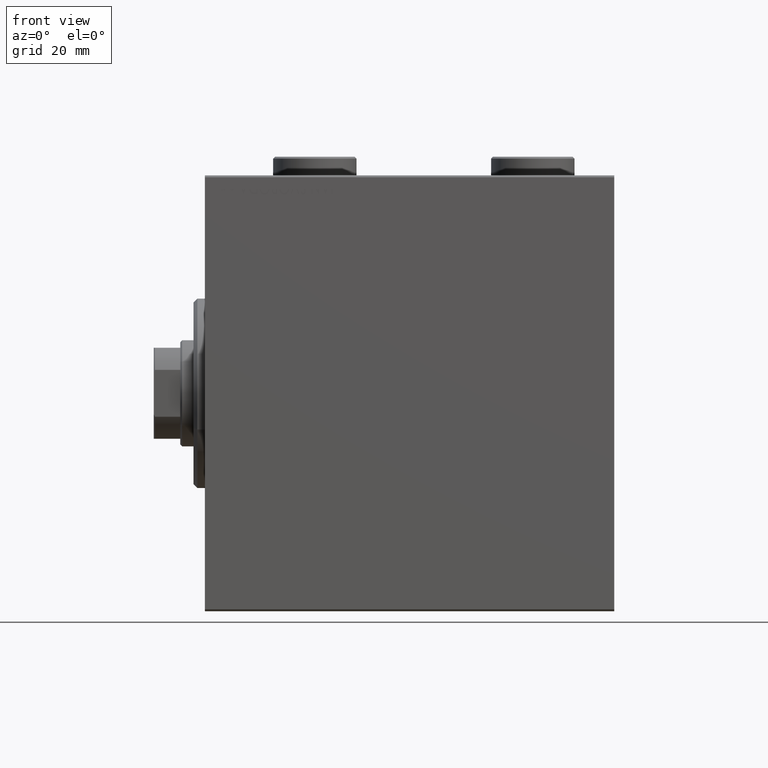
[diagram: clean part render]
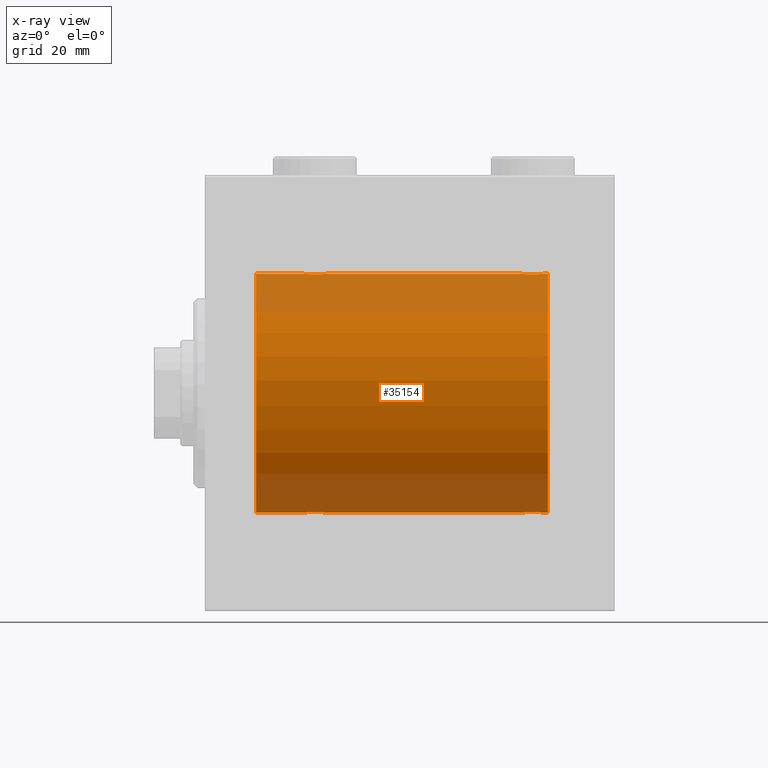
[diagram: x-ray — body ghosted, one internal face saturated and labeled with its STEP entity id]
A machine part, front view, then the same camera in x-ray: the body is ghosted and one INTERNAL B-rep face — a face not visible from any outside direction — is saturated and labeled: STEP entity #35154.
In plain terms, the highlighted cylindrical surface (partial cylindrical patch) has radius 31.5 mm, axis along (-1, -0, -0).
Its self-contained STEP definition (entity closure, byte-faithful):
#488 = CARTESIAN_POINT ( 'NONE',  ( 26.00000000000000355, -0.3965830985361813443, -31.50000000000000711 ) ) ;
#941 = AXIS2_PLACEMENT_3D ( 'NONE', #15139, #35778, #4399 ) ;
#1130 = EDGE_CURVE ( 'NONE', #20079, #31421, #42364, .T. ) ;
#1170 = CYLINDRICAL_SURFACE ( 'NONE', #941, 31.50000000000000000 ) ;
#1185 = CARTESIAN_POINT ( 'NONE',  ( 83.80285761163298730, -1.328004386210315024, 31.47251238182141719 ) ) ;
#1847 = CARTESIAN_POINT ( 'NONE',  ( 29.39114547339941552, -2.980809450819701834, 31.35867074198615967 ) ) ;
#1863 = CARTESIAN_POINT ( 'NONE',  ( 85.17134585312489037, -2.696917666262924840, -31.38442820068731365 ) ) ;
#2325 = CARTESIAN_POINT ( 'NONE',  ( 89.34660463742501690, -0.9669616078781998469, -31.48567319468627446 ) ) ;
#2420 = CARTESIAN_POINT ( 'NONE',  ( 28.03484270189360217, -2.847307171789034808, -31.37114183851420179 ) ) ;
#2535 = CARTESIAN_POINT ( 'NONE',  ( 27.01539640075335669, -2.258226318633785201, 31.41925597582825702 ) ) ;
#2552 = CARTESIAN_POINT ( 'NONE',  ( 83.80470357640989221, -1.331741824817675113, -31.47235367475394341 ) ) ;
#2558 = CARTESIAN_POINT ( 'NONE',  ( 90.50000000000000000, 3.857637417314162689E-15, -31.50000000000000000 ) ) ;
#2566 = LINE ( 'NONE', #27535, #6495 ) ;
#2648 = CARTESIAN_POINT ( 'NONE',  ( 27.17295774629732819, -2.387531469909775605, -31.40957782495775419 ) ) ;
#2724 = DIRECTION ( 'NONE',  ( 0.000000000000000000, 0.000000000000000000, 1.000000000000000000 ) ) ;
#2977 = CARTESIAN_POINT ( 'NONE',  ( 32.00000000000000000, -3.906065418435112189E-16, 31.50000000000000000 ) ) ;
#3077 = LINE ( 'NONE', #6512, #22370 ) ;
#3710 = ORIENTED_EDGE ( 'NONE', *, *, #10427, .T. ) ;
#4178 = CARTESIAN_POINT ( 'NONE',  ( 88.75824501903265684, -1.984587626072075617, 31.43772577203671759 ) ) ;
#4329 = DIRECTION ( 'NONE',  ( -1.000000000000000000, -0.000000000000000000, -0.000000000000000000 ) ) ;
#4399 = DIRECTION ( 'NONE',  ( 0.000000000000000000, 0.000000000000000000, 1.000000000000000000 ) ) ;
#4506 = ORIENTED_EDGE ( 'NONE', *, *, #41700, .F. ) ;
#4850 = CARTESIAN_POINT ( 'NONE',  ( 87.82865414687509542, -2.696917666262913738, 31.38442820068732075 ) ) ;
#5073 = CARTESIAN_POINT ( 'NONE',  ( 89.10192140439151842, -1.506272792558327245, 31.46439306106695710 ) ) ;
#5312 = CARTESIAN_POINT ( 'NONE',  ( 86.10885452660059514, -2.980809450819716933, -31.35867074198615967 ) ) ;
#5537 = CARTESIAN_POINT ( 'NONE',  ( 83.57979337049955859, -0.7905881588836273233, -31.49214662150069088 ) ) ;
#5768 = CARTESIAN_POINT ( 'NONE',  ( 89.48101509391514696, -0.3904857149112013204, -31.49817436802766224 ) ) ;
#5865 = CARTESIAN_POINT ( 'NONE',  ( 30.33239958099164824, -2.695056442718529954, -31.38458855656185875 ) ) ;
#6007 = LINE ( 'NONE', #2558, #31145 ) ;
#6048 = EDGE_CURVE ( 'NONE', #23041, #16712, #41604, .T. ) ;
#6313 = CARTESIAN_POINT ( 'NONE',  ( 26.61753127733371116, -1.833765390051047106, -31.44700610425690002 ) ) ;
#6495 = VECTOR ( 'NONE', #16538, 1000.000000000000000 ) ;
#6512 = CARTESIAN_POINT ( 'NONE',  ( 90.50000000000000000, 0.000000000000000000, 31.50000000000000000 ) ) ;
#6570 = CARTESIAN_POINT ( 'NONE',  ( 13.49999999999999822, 0.000000000000000000, 31.50000000000000000 ) ) ;
#6710 = CIRCLE ( 'NONE', #8875, 31.50000000000000000 ) ;
#6860 = EDGE_LOOP ( 'NONE', ( #18983, #23553, #39821, #38417, #15290, #30472, #3710, #16254, #13138, #22982, #17869, #4506 ) ) ;
#7127 = VERTEX_POINT ( 'NONE', #6570 ) ;
#7381 = CARTESIAN_POINT ( 'NONE',  ( 32.00000000000001421, -0.1958045626907418957, -31.50000000000000711 ) ) ;
#7587 = LINE ( 'NONE', #21570, #27246 ) ;
#7843 = CARTESIAN_POINT ( 'NONE',  ( 83.59580549261943361, -0.7775502215293907948, 31.49099686045558855 ) ) ;
#8112 = CARTESIAN_POINT ( 'NONE',  ( 90.50000000000000000, 0.000000000000000000, 31.50000000000000000 ) ) ;
#8172 = CIRCLE ( 'NONE', #39628, 31.50000000000000000 ) ;
#8492 = CARTESIAN_POINT ( 'NONE',  ( 27.66760041900836953, -2.695056442718533507, 31.38458855656185875 ) ) ;
#8875 = AXIS2_PLACEMENT_3D ( 'NONE', #30918, #44896, #2724 ) ;
#8964 = CARTESIAN_POINT ( 'NONE',  ( 87.83239958099163402, -2.695056442718546830, -31.38458855656186230 ) ) ;
#9747 = CARTESIAN_POINT ( 'NONE',  ( 31.60417781274729165, -1.502389880412996259, -31.46458023642406587 ) ) ;
#10316 = CARTESIAN_POINT ( 'NONE',  ( 83.49999999999998579, -1.354660151018645615E-14, -31.50000000000000000 ) ) ;
#10427 = EDGE_CURVE ( 'NONE', #33763, #7127, #6710, .T. ) ;
#10703 = B_SPLINE_CURVE_WITH_KNOTS ( 'NONE', 3,
 ( #24553, #7381, #23726, #16861, #23255, #33580, #9747, #20087, #30609, #13411, #42203, #28000, #5865, #19852, #16161, #10799, #44128, #33809, #34037, #20307, #2420, #44353, #23500, #2648, #44582, #13187, #6313, #34262, #36220, #22258, #488, #25465 ),
 .UNSPECIFIED., .F., .F.,
 ( 4, 2, 2, 2, 2, 2, 2, 2, 2, 2, 2, 2, 2, 2, 2, 4 ),
 ( 0.009384682587134662163, 0.009971088165454068328, 0.01055749374377347449, 0.01114389932209288066, 0.01173030490041228682, 0.01231671047873168605, 0.01290311605705108527, 0.01348952163537048277, 0.01407592721368988199, 0.01466233279200928122, 0.01524873837032868044, 0.01583514394864807967, 0.01642154952696747716, 0.01700795510528687812, 0.01759436068360627908, 0.01876717184024507407 ),
 .UNSPECIFIED. ) ;
#10799 = CARTESIAN_POINT ( 'NONE',  ( 29.39534111000094541, -2.980257240990050960, -31.35872356503797320 ) ) ;
#11058 = CARTESIAN_POINT ( 'NONE',  ( 87.27469094434374597, -2.904836261170115730, 31.36579955910872997 ) ) ;
#11284 = CARTESIAN_POINT ( 'NONE',  ( 83.65339536257499731, -0.9669616078782070634, 31.48567319468626735 ) ) ;
#11287 = DIRECTION ( 'NONE',  ( -1.000000000000000000, -0.000000000000000000, -0.000000000000000000 ) ) ;
#11399 = VERTEX_POINT ( 'NONE', #38602 ) ;
#11925 = EDGE_CURVE ( 'NONE', #15823, #7127, #3077, .T. ) ;
#11942 = CARTESIAN_POINT ( 'NONE',  ( 26.73904537543869608, -1.981494824113328779, 31.43792153503155973 ) ) ;
#12033 = CARTESIAN_POINT ( 'NONE',  ( 13.49999999999999822, 3.857637417314162689E-15, -31.50000000000000000 ) ) ;
#12160 = CARTESIAN_POINT ( 'NONE',  ( 28.79953541025904684, -2.999845816735297266, 31.35683219171744796 ) ) ;
#12407 = CARTESIAN_POINT ( 'NONE',  ( 84.11753127733369695, -1.833765390051052657, -31.44700610425689291 ) ) ;
#12861 = CARTESIAN_POINT ( 'NONE',  ( 84.67295774629731397, -2.387531469909792481, -31.40957782495775419 ) ) ;
#13042 = VECTOR ( 'NONE', #4329, 1000.000000000000000 ) ;
#13068 = CARTESIAN_POINT ( 'NONE',  ( 30.32865414687508832, -2.696917666262907520, 31.38442820068731365 ) ) ;
#13138 = ORIENTED_EDGE ( 'NONE', *, *, #20555, .T. ) ;
#13187 = CARTESIAN_POINT ( 'NONE',  ( 26.74175498096735026, -1.984587626072075617, -31.43772577203673180 ) ) ;
#13301 = CARTESIAN_POINT ( 'NONE',  ( 30.98143462873041898, -2.261012035264782227, 31.41905495618429356 ) ) ;
#13411 = CARTESIAN_POINT ( 'NONE',  ( 30.98460359924664687, -2.258226318633781649, -31.41925597582825702 ) ) ;
#13742 = CARTESIAN_POINT ( 'NONE',  ( 31.92020662950040943, -0.7905881588836116691, 31.49214662150068378 ) ) ;
#13968 = CARTESIAN_POINT ( 'NONE',  ( 90.50000000000000000, 0.000000000000000000, 0.000000000000000000 ) ) ;
#14942 = CARTESIAN_POINT ( 'NONE',  ( 85.53055544341479788, -2.845838211243349569, 31.37127560316188024 ) ) ;
#15139 = CARTESIAN_POINT ( 'NONE',  ( 90.50000000000000000, 0.000000000000000000, 0.000000000000000000 ) ) ;
#15152 = CARTESIAN_POINT ( 'NONE',  ( 86.29953541025901131, -2.999845816735307036, 31.35683219171744796 ) ) ;
#15198 = CARTESIAN_POINT ( 'NONE',  ( 90.50000000000000000, 3.857637417314162689E-15, -31.50000000000000000 ) ) ;
#15290 = ORIENTED_EDGE ( 'NONE', *, *, #23571, .T. ) ;
#15298 = CARTESIAN_POINT ( 'NONE',  ( 89.50000000000000000, 3.857637396143758955E-15, -31.50000000000000000 ) ) ;
#15382 = CARTESIAN_POINT ( 'NONE',  ( 83.49999999999998579, -2.116947682205846230E-23, 31.50000000000000000 ) ) ;
#15601 = CARTESIAN_POINT ( 'NONE',  ( 26.01898490608483527, -0.3904857149112033743, 31.49817436802766935 ) ) ;
#15823 = VERTEX_POINT ( 'NONE', #40604 ) ;
#15837 = CARTESIAN_POINT ( 'NONE',  ( 86.70046458974097447, -2.999845816735310589, -31.35683219171744796 ) ) ;
#16161 = CARTESIAN_POINT ( 'NONE',  ( 29.77881912642320827, -2.903733559410679455, -31.36590199989303684 ) ) ;
#16254 = ORIENTED_EDGE ( 'NONE', *, *, #11925, .F. ) ;
#16303 = CARTESIAN_POINT ( 'NONE',  ( 88.00456285007000190, -2.602826974226410961, -31.39247100434486271 ) ) ;
#16508 = CARTESIAN_POINT ( 'NONE',  ( 26.61498557723073333, -1.830470878313877892, 31.44719957596828053 ) ) ;
#16526 = CARTESIAN_POINT ( 'NONE',  ( 87.46944455658521633, -2.845838211243347793, -31.37127560316186603 ) ) ;
#16538 = DIRECTION ( 'NONE',  ( -1.000000000000000000, -0.000000000000000000, -0.000000000000000000 ) ) ;
#16712 = VERTEX_POINT ( 'NONE', #44088 ) ;
#16861 = CARTESIAN_POINT ( 'NONE',  ( 31.90419450738055218, -0.7775502215293819130, -31.49099686045559565 ) ) ;
#17869 = ORIENTED_EDGE ( 'NONE', *, *, #40239, .T. ) ;
#18163 = CARTESIAN_POINT ( 'NONE',  ( 88.48143462873041187, -2.261012035264784892, 31.41905495618427935 ) ) ;
#18619 = CARTESIAN_POINT ( 'NONE',  ( 85.72118087357682725, -2.903733559410697662, 31.36590199989305106 ) ) ;
#18837 = CARTESIAN_POINT ( 'NONE',  ( 88.00098156296147067, -2.604888532024798309, 31.39229907792057972 ) ) ;
#18983 = ORIENTED_EDGE ( 'NONE', *, *, #32060, .F. ) ;
#19057 = CARTESIAN_POINT ( 'NONE',  ( 28.22118087357680238, -2.903733559410683895, 31.36590199989303684 ) ) ;
#19280 = FACE_OUTER_BOUND ( 'NONE', #6860, .T. ) ;
#19284 = CARTESIAN_POINT ( 'NONE',  ( 26.00000000000001066, -0.1958045626907463088, 31.50000000000000711 ) ) ;
#19301 = CARTESIAN_POINT ( 'NONE',  ( 85.53484270189359506, -2.847307171789053903, -31.37114183851420179 ) ) ;
#19524 = CARTESIAN_POINT ( 'NONE',  ( 83.49999999999998579, -0.3965830985361872840, -31.50000000000000711 ) ) ;
#19852 = CARTESIAN_POINT ( 'NONE',  ( 29.96944455658523054, -2.845838211243329585, -31.37127560316186603 ) ) ;
#19974 = CARTESIAN_POINT ( 'NONE',  ( 26.00000000000000355, -2.117263226567934635E-23, 31.50000000000000000 ) ) ;
#19993 = CARTESIAN_POINT ( 'NONE',  ( 89.19714238836702691, -1.328004386210309251, -31.47251238182141719 ) ) ;
#20079 = VERTEX_POINT ( 'NONE', #33185 ) ;
#20087 = CARTESIAN_POINT ( 'NONE',  ( 31.38501442276926667, -1.830470878313872563, -31.44719957596828763 ) ) ;
#20188 = DIRECTION ( 'NONE',  ( 0.000000000000000000, 0.000000000000000000, 1.000000000000000000 ) ) ;
#20307 = CARTESIAN_POINT ( 'NONE',  ( 28.22530905565627179, -2.904836261170103739, -31.36579955910872286 ) ) ;
#20555 = EDGE_CURVE ( 'NONE', #15823, #31421, #42632, .T. ) ;
#21570 = CARTESIAN_POINT ( 'NONE',  ( 90.50000000000000000, 3.857637417314162689E-15, -31.50000000000000000 ) ) ;
#21605 = CARTESIAN_POINT ( 'NONE',  ( 86.10465888999905815, -2.980257240990066947, 31.35872356503798031 ) ) ;
#21826 = CARTESIAN_POINT ( 'NONE',  ( 84.23904537543867832, -1.981494824113344322, 31.43792153503156683 ) ) ;
#22019 = DIRECTION ( 'NONE',  ( -1.000000000000000000, -0.000000000000000000, -0.000000000000000000 ) ) ;
#22055 = CARTESIAN_POINT ( 'NONE',  ( 84.11498557723071201, -1.830470878313887884, 31.44719957596828053 ) ) ;
#22258 = CARTESIAN_POINT ( 'NONE',  ( 26.07979337049960478, -0.7905881588836203289, -31.49214662150069088 ) ) ;
#22271 = CARTESIAN_POINT ( 'NONE',  ( 86.89114547339943329, -2.980809450819711159, 31.35867074198615967 ) ) ;
#22370 = VECTOR ( 'NONE', #34465, 1000.000000000000000 ) ;
#22488 = CARTESIAN_POINT ( 'NONE',  ( 83.49999999999998579, -0.1958045626907495562, 31.50000000000000000 ) ) ;
#22723 = CARTESIAN_POINT ( 'NONE',  ( 88.76095462456133589, -1.981494824113334774, -31.43792153503157394 ) ) ;
#22948 = CARTESIAN_POINT ( 'NONE',  ( 85.72530905565625403, -2.904836261170121947, -31.36579955910872286 ) ) ;
#22982 = ORIENTED_EDGE ( 'NONE', *, *, #1130, .F. ) ;
#23041 = VERTEX_POINT ( 'NONE', #15298 ) ;
#23173 = VERTEX_POINT ( 'NONE', #34552 ) ;
#23255 = CARTESIAN_POINT ( 'NONE',  ( 31.84660463742499559, -0.9669616078781945179, -31.48567319468626735 ) ) ;
#23500 = CARTESIAN_POINT ( 'NONE',  ( 27.49901843703856130, -2.604888532024793424, -31.39229907792058683 ) ) ;
#23553 = ORIENTED_EDGE ( 'NONE', *, *, #42889, .T. ) ;
#23571 = EDGE_CURVE ( 'NONE', #34467, #23173, #10703, .T. ) ;
#23616 = CARTESIAN_POINT ( 'NONE',  ( 30.50098156296146712, -2.604888532024788983, 31.39229907792058683 ) ) ;
#23632 = CARTESIAN_POINT ( 'NONE',  ( 88.48460359924666818, -2.258226318633792751, -31.41925597582826413 ) ) ;
#23726 = CARTESIAN_POINT ( 'NONE',  ( 31.98101509391517538, -0.3904857149111993775, -31.49817436802766224 ) ) ;
#24553 = CARTESIAN_POINT ( 'NONE',  ( 32.00000000000000000, 3.857637396137448068E-15, -31.50000000000000000 ) ) ;
#25034 = CARTESIAN_POINT ( 'NONE',  ( 83.51898490608482462, -0.3904857149112073711, 31.49817436802766935 ) ) ;
#25258 = CARTESIAN_POINT ( 'NONE',  ( 89.19529642359012200, -1.331741824817663122, 31.47235367475394341 ) ) ;
#25465 = CARTESIAN_POINT ( 'NONE',  ( 26.00000000000000355, -6.595038141055444136E-15, -31.50000000000000000 ) ) ;
#25711 = CARTESIAN_POINT ( 'NONE',  ( 84.99543714992996968, -2.602826974226406076, 31.39247100434484850 ) ) ;
#25921 = CARTESIAN_POINT ( 'NONE',  ( 27.49543714993000876, -2.602826974226395862, 31.39247100434485560 ) ) ;
#26138 = CARTESIAN_POINT ( 'NONE',  ( 26.09580549261944427, -0.7775502215293862429, 31.49099686045558144 ) ) ;
#26393 = CARTESIAN_POINT ( 'NONE',  ( 89.50000000000000000, 3.857637396143758955E-15, -31.50000000000000000 ) ) ;
#26842 = CARTESIAN_POINT ( 'NONE',  ( 89.50000000000001421, -0.1958045626907434222, -31.50000000000000711 ) ) ;
#26849 = DIRECTION ( 'NONE',  ( -1.000000000000000000, -0.000000000000000000, -0.000000000000000000 ) ) ;
#27062 = CARTESIAN_POINT ( 'NONE',  ( 31.38246872266631371, -1.833765390051040223, 31.44700610425690712 ) ) ;
#27246 = VECTOR ( 'NONE', #22019, 1000.000000000000000 ) ;
#27294 = CARTESIAN_POINT ( 'NONE',  ( 31.60192140439154684, -1.506272792558323470, 31.46439306106697131 ) ) ;
#27309 = CARTESIAN_POINT ( 'NONE',  ( 86.89534111000095606, -2.980257240990069167, -31.35872356503797320 ) ) ;
#27535 = CARTESIAN_POINT ( 'NONE',  ( 90.50000000000000000, 3.857637417314162689E-15, -31.50000000000000000 ) ) ;
#27950 = CARTESIAN_POINT ( 'NONE',  ( 30.82704225370267892, -2.387531469909770276, 31.40957782495776129 ) ) ;
#28000 = CARTESIAN_POINT ( 'NONE',  ( 30.50456285006998769, -2.602826974226392309, -31.39247100434485560 ) ) ;
#28077 = VECTOR ( 'NONE', #11287, 1000.000000000000000 ) ;
#28236 = CARTESIAN_POINT ( 'NONE',  ( 90.50000000000000000, 0.000000000000000000, 31.50000000000000000 ) ) ;
#28923 = CARTESIAN_POINT ( 'NONE',  ( 88.88246872266633147, -1.833765390051044442, 31.44700610425689291 ) ) ;
#29367 = CARTESIAN_POINT ( 'NONE',  ( 85.16760041900836598, -2.695056442718549494, 31.38458855656185875 ) ) ;
#29579 = CARTESIAN_POINT ( 'NONE',  ( 28.60465888999904749, -2.980257240990054513, 31.35872356503797320 ) ) ;
#29587 = CARTESIAN_POINT ( 'NONE',  ( 83.89582218725269058, -1.502389880413010026, 31.46458023642405877 ) ) ;
#29819 = CARTESIAN_POINT ( 'NONE',  ( 84.99901843703854354, -2.604888532024810299, -31.39229907792057972 ) ) ;
#30034 = CARTESIAN_POINT ( 'NONE',  ( 27.16956308512997964, -2.384935707362437096, 31.40977595730572958 ) ) ;
#30283 = CARTESIAN_POINT ( 'NONE',  ( 87.27881912642318696, -2.903733559410696774, -31.36590199989303684 ) ) ;
#30472 = ORIENTED_EDGE ( 'NONE', *, *, #43761, .T. ) ;
#30609 = CARTESIAN_POINT ( 'NONE',  ( 31.26095462456130747, -1.981494824113326114, -31.43792153503156683 ) ) ;
#30742 = CARTESIAN_POINT ( 'NONE',  ( 89.40419450738056639, -0.7775502215293851327, -31.49099686045559565 ) ) ;
#30918 = CARTESIAN_POINT ( 'NONE',  ( 13.49999999999999822, 0.000000000000000000, 0.000000000000000000 ) ) ;
#31145 = VECTOR ( 'NONE', #26849, 1000.000000000000000 ) ;
#31421 = VERTEX_POINT ( 'NONE', #2977 ) ;
#32025 = B_SPLINE_CURVE_WITH_KNOTS ( 'NONE', 3,
 ( #15382, #22488, #25034, #7843, #11284, #1185, #29587, #22055, #21826, #32374, #43116, #25711, #29367, #14942, #18619, #21605, #15152, #39686, #22271, #11058, #33031, #4850, #18837, #32803, #18163, #4178, #28923, #5073, #25258, #35794, #43342, #42681 ),
 .UNSPECIFIED., .F., .F.,
 ( 4, 2, 2, 2, 2, 2, 2, 2, 2, 2, 2, 2, 2, 2, 2, 4 ),
 ( 0.009384682587134660428, 0.009971088165454063124, 0.01055749374377346582, 0.01114389932209286851, 0.01173030490041227121, 0.01231671047873167217, 0.01290311605705107313, 0.01348952163537047583, 0.01407592721368987679, 0.01466233279200927775, 0.01524873837032867871, 0.01583514394864807967, 0.01642154952696748410, 0.01700795510528688506, 0.01759436068360628602, 0.01876717184024507407 ),
 .UNSPECIFIED. ) ;
#32060 = EDGE_CURVE ( 'NONE', #37266, #37262, #8172, .T. ) ;
#32374 = CARTESIAN_POINT ( 'NONE',  ( 84.51539640075337445, -2.258226318633800300, 31.41925597582826413 ) ) ;
#32803 = CARTESIAN_POINT ( 'NONE',  ( 88.32704225370268603, -2.387531469909779158, 31.40957782495775419 ) ) ;
#33031 = CARTESIAN_POINT ( 'NONE',  ( 87.46515729810640494, -2.847307171789044133, 31.37114183851420890 ) ) ;
#33185 = CARTESIAN_POINT ( 'NONE',  ( 83.49999999999998579, -2.116947682205846230E-23, 31.50000000000000000 ) ) ;
#33266 = CARTESIAN_POINT ( 'NONE',  ( 88.88501442276927378, -1.830470878313876781, -31.44719957596828763 ) ) ;
#33285 = EDGE_CURVE ( 'NONE', #16712, #34467, #7587, .T. ) ;
#33580 = CARTESIAN_POINT ( 'NONE',  ( 31.69714238836700915, -1.328004386210301480, -31.47251238182141009 ) ) ;
#33763 = VERTEX_POINT ( 'NONE', #12033 ) ;
#33809 = CARTESIAN_POINT ( 'NONE',  ( 28.80417705560560648, -3.000152387858484371, -31.35680286115500337 ) ) ;
#33926 = CARTESIAN_POINT ( 'NONE',  ( 26.39582218725271900, -1.502389880413001144, 31.46458023642405166 ) ) ;
#33945 = CARTESIAN_POINT ( 'NONE',  ( 83.89807859560842473, -1.506272792558335683, -31.46439306106695710 ) ) ;
#34037 = CARTESIAN_POINT ( 'NONE',  ( 28.60885452660059869, -2.980809450819698725, -31.35867074198615256 ) ) ;
#34149 = CARTESIAN_POINT ( 'NONE',  ( 29.77469094434372821, -2.904836261170106404, 31.36579955910873707 ) ) ;
#34262 = CARTESIAN_POINT ( 'NONE',  ( 26.39807859560848158, -1.506272792558332130, -31.46439306106697131 ) ) ;
#34370 = DIRECTION ( 'NONE',  ( -1.000000000000000000, 0.000000000000000000, 0.000000000000000000 ) ) ;
#34377 = CARTESIAN_POINT ( 'NONE',  ( 32.00000000000000000, -3.906065418435112189E-16, 31.50000000000000000 ) ) ;
#34465 = DIRECTION ( 'NONE',  ( -1.000000000000000000, -0.000000000000000000, -0.000000000000000000 ) ) ;
#34467 = VERTEX_POINT ( 'NONE', #38641 ) ;
#34552 = CARTESIAN_POINT ( 'NONE',  ( 26.00000000000000355, -6.595038141055444136E-15, -31.50000000000000000 ) ) ;
#35154 = ADVANCED_FACE ( 'NONE', ( #19280 ), #1170, .F. ) ;
#35778 = DIRECTION ( 'NONE',  ( -1.000000000000000000, -0.000000000000000000, -0.000000000000000000 ) ) ;
#35794 = CARTESIAN_POINT ( 'NONE',  ( 89.42020662950039878, -0.7905881588836165541, 31.49214662150069088 ) ) ;
#36220 = CARTESIAN_POINT ( 'NONE',  ( 26.30470357640989576, -1.331741824817665343, -31.47235367475392920 ) ) ;
#36441 = CARTESIAN_POINT ( 'NONE',  ( 28.03055544341478722, -2.845838211243333138, 31.37127560316186603 ) ) ;
#36674 = CARTESIAN_POINT ( 'NONE',  ( 26.15339536257501507, -0.9669616078781987367, 31.48567319468626735 ) ) ;
#36914 = CARTESIAN_POINT ( 'NONE',  ( 84.51856537126954549, -2.261012035264799103, -31.41905495618427224 ) ) ;
#37262 = VERTEX_POINT ( 'NONE', #8112 ) ;
#37266 = VERTEX_POINT ( 'NONE', #15198 ) ;
#37362 = CARTESIAN_POINT ( 'NONE',  ( 26.30285761163300151, -1.328004386210305698, 31.47251238182140298 ) ) ;
#37606 = CARTESIAN_POINT ( 'NONE',  ( 86.30417705560559227, -3.000152387858500802, -31.35680286115499626 ) ) ;
#37806 = CARTESIAN_POINT ( 'NONE',  ( 31.25824501903266039, -1.984587626072074285, 31.43772577203672469 ) ) ;
#38417 = ORIENTED_EDGE ( 'NONE', *, *, #33285, .T. ) ;
#38546 = LINE ( 'NONE', #28236, #28077 ) ;
#38602 = CARTESIAN_POINT ( 'NONE',  ( 89.50000000000000000, -2.415502498297804861E-16, 31.50000000000000000 ) ) ;
#38641 = CARTESIAN_POINT ( 'NONE',  ( 32.00000000000000000, 3.857637396137448068E-15, -31.50000000000000000 ) ) ;
#39153 = CARTESIAN_POINT ( 'NONE',  ( 90.50000000000000000, 0.000000000000000000, 31.50000000000000000 ) ) ;
#39628 = AXIS2_PLACEMENT_3D ( 'NONE', #13968, #34370, #20188 ) ;
#39686 = CARTESIAN_POINT ( 'NONE',  ( 86.69582294439439352, -3.000152387858496805, 31.35680286115500337 ) ) ;
#39821 = ORIENTED_EDGE ( 'NONE', *, *, #6048, .T. ) ;
#40118 = CARTESIAN_POINT ( 'NONE',  ( 29.19582294439440417, -3.000152387858486147, 31.35680286115499626 ) ) ;
#40239 = EDGE_CURVE ( 'NONE', #20079, #11399, #32025, .T. ) ;
#40369 = CARTESIAN_POINT ( 'NONE',  ( 88.33043691486999194, -2.384935707362452195, -31.40977595730572247 ) ) ;
#40604 = CARTESIAN_POINT ( 'NONE',  ( 26.00000000000000355, -2.117263226567934635E-23, 31.50000000000000000 ) ) ;
#40818 = CARTESIAN_POINT ( 'NONE',  ( 89.10417781274732363, -1.502389880412997147, -31.46458023642405877 ) ) ;
#41038 = CARTESIAN_POINT ( 'NONE',  ( 32.00000000000001421, -0.3965830985361748495, 31.50000000000001421 ) ) ;
#41268 = CARTESIAN_POINT ( 'NONE',  ( 31.69529642359010424, -1.331741824817659348, 31.47235367475393630 ) ) ;
#41486 = CARTESIAN_POINT ( 'NONE',  ( 29.96515729810641204, -2.847307171789037028, 31.37114183851420890 ) ) ;
#41604 = B_SPLINE_CURVE_WITH_KNOTS ( 'NONE', 3,
 ( #26393, #26842, #5768, #30742, #2325, #19993, #40818, #33266, #22723, #23632, #40369, #16303, #8964, #16526, #30283, #27309, #15837, #37606, #5312, #22948, #19301, #1863, #29819, #12861, #36914, #43799, #12407, #33945, #2552, #5537, #19524, #10316 ),
 .UNSPECIFIED., .F., .F.,
 ( 4, 2, 2, 2, 2, 2, 2, 2, 2, 2, 2, 2, 2, 2, 2, 4 ),
 ( 0.009384682587134677775, 0.009971088165454078736, 0.01055749374377348143, 0.01114389932209288239, 0.01173030490041228509, 0.01231671047873168778, 0.01290311605705108874, 0.01348952163537048970, 0.01407592721368989067, 0.01466233279200929336, 0.01524873837032869606, 0.01583514394864809702, 0.01642154952696749798, 0.01700795510528689894, 0.01759436068360629990, 0.01876717184024510529 ),
 .UNSPECIFIED. ) ;
#41700 = EDGE_CURVE ( 'NONE', #37262, #11399, #38546, .T. ) ;
#42203 = CARTESIAN_POINT ( 'NONE',  ( 30.83043691487002746, -2.384935707362433988, -31.40977595730572958 ) ) ;
#42364 = LINE ( 'NONE', #39153, #13042 ) ;
#42632 = B_SPLINE_CURVE_WITH_KNOTS ( 'NONE', 3,
 ( #19974, #19284, #15601, #26138, #36674, #37362, #33926, #16508, #11942, #2535, #30034, #25921, #8492, #36441, #19057, #29579, #12160, #40118, #1847, #34149, #41486, #13068, #23616, #27950, #13301, #37806, #27062, #27294, #41268, #13742, #41038, #34377 ),
 .UNSPECIFIED., .F., .F.,
 ( 4, 2, 2, 2, 2, 2, 2, 2, 2, 2, 2, 2, 2, 2, 2, 4 ),
 ( 0.009384682587134639611, 0.009971088165454038837, 0.01055749374377343980, 0.01114389932209284076, 0.01173030490041223999, 0.01231671047873163921, 0.01290311605705104017, 0.01348952163537044113, 0.01407592721368984036, 0.01466233279200923958, 0.01524873837032864055, 0.01583514394864804151, 0.01642154952696744247, 0.01700795510528683996, 0.01759436068360624092, 0.01876717184024503243 ),
 .UNSPECIFIED. ) ;
#42681 = CARTESIAN_POINT ( 'NONE',  ( 89.50000000000000000, -2.415502498297804861E-16, 31.50000000000000000 ) ) ;
#42889 = EDGE_CURVE ( 'NONE', #37266, #23041, #6007, .T. ) ;
#43116 = CARTESIAN_POINT ( 'NONE',  ( 84.66956308512997964, -2.384935707362449087, 31.40977595730572958 ) ) ;
#43342 = CARTESIAN_POINT ( 'NONE',  ( 89.49999999999998579, -0.3965830985361750161, 31.50000000000000000 ) ) ;
#43761 = EDGE_CURVE ( 'NONE', #23173, #33763, #2566, .T. ) ;
#43799 = CARTESIAN_POINT ( 'NONE',  ( 84.24175498096732895, -1.984587626072091160, -31.43772577203671048 ) ) ;
#44088 = CARTESIAN_POINT ( 'NONE',  ( 83.49999999999998579, -1.354660151018645615E-14, -31.50000000000000000 ) ) ;
#44128 = CARTESIAN_POINT ( 'NONE',  ( 29.20046458974095671, -2.999845816735294157, -31.35683219171744085 ) ) ;
#44353 = CARTESIAN_POINT ( 'NONE',  ( 27.67134585312494011, -2.696917666262907520, -31.38442820068732786 ) ) ;
#44582 = CARTESIAN_POINT ( 'NONE',  ( 27.01856537126958813, -2.261012035264781783, -31.41905495618428645 ) ) ;
#44896 = DIRECTION ( 'NONE',  ( -1.000000000000000000, 0.000000000000000000, 0.000000000000000000 ) ) ;